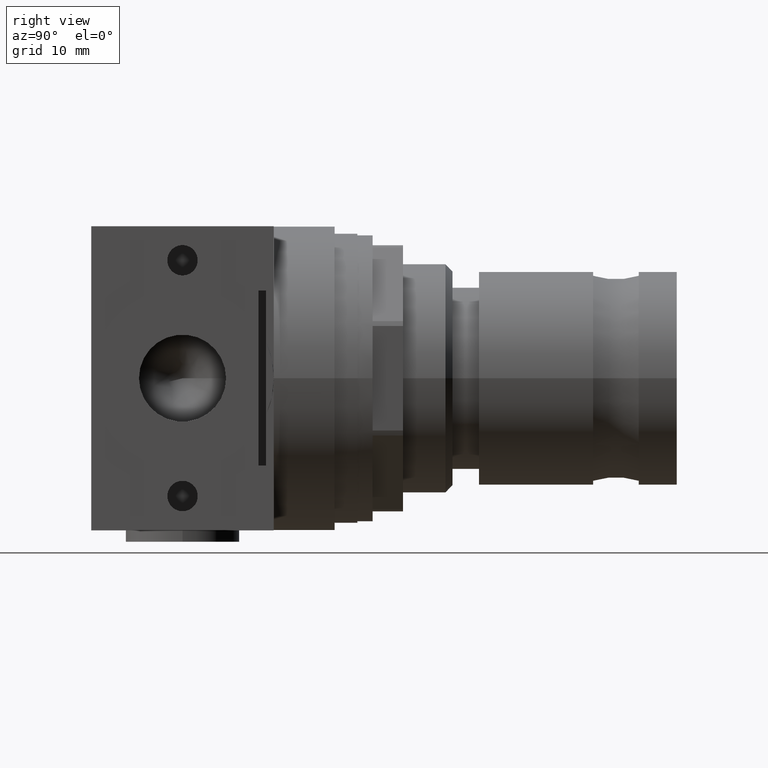
[diagram: clean part render]
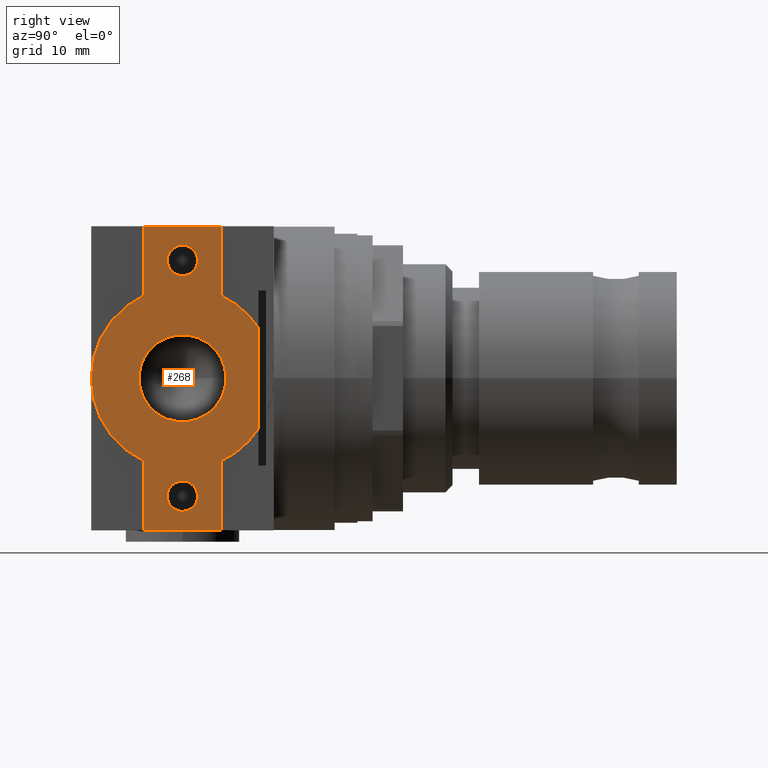
[diagram: same view with one face highlighted and labeled with its STEP entity id]
A machine part, right view. The second image highlights one B-rep face of the part: STEP entity #268.
In plain terms, the highlighted planar face has unit normal (1, 0, 0).
Its self-contained STEP definition (entity closure, byte-faithful):
#268 = ADVANCED_FACE( '', ( #603, #604, #605, #606 ), #607, .T. );
#603 = FACE_BOUND( '', #1048, .T. );
#604 = FACE_OUTER_BOUND( '', #1049, .T. );
#605 = FACE_BOUND( '', #1050, .T. );
#606 = FACE_BOUND( '', #1051, .T. );
#607 = PLANE( '', #1052 );
#1048 = EDGE_LOOP( '', ( #1611 ) );
#1049 = EDGE_LOOP( '', ( #1612, #1613, #1614, #1615, #1616, #1617, #1618, #1619, #1620, #1621 ) );
#1050 = EDGE_LOOP( '', ( #1622 ) );
#1051 = EDGE_LOOP( '', ( #1623 ) );
#1052 = AXIS2_PLACEMENT_3D( '', #1624, #1625, #1626 );
#1611 = ORIENTED_EDGE( '', *, *, #2553, .F. );
#1612 = ORIENTED_EDGE( '', *, *, #2554, .F. );
#1613 = ORIENTED_EDGE( '', *, *, #2555, .T. );
#1614 = ORIENTED_EDGE( '', *, *, #2456, .T. );
#1615 = ORIENTED_EDGE( '', *, *, #2556, .T. );
#1616 = ORIENTED_EDGE( '', *, *, #2557, .T. );
#1617 = ORIENTED_EDGE( '', *, *, #2558, .T. );
#1618 = ORIENTED_EDGE( '', *, *, #2514, .T. );
#1619 = ORIENTED_EDGE( '', *, *, #2559, .T. );
#1620 = ORIENTED_EDGE( '', *, *, #2560, .T. );
#1621 = ORIENTED_EDGE( '', *, *, #2561, .T. );
#1622 = ORIENTED_EDGE( '', *, *, #2562, .F. );
#1623 = ORIENTED_EDGE( '', *, *, #2563, .F. );
#1624 = CARTESIAN_POINT( '', ( 20.0000000000000, 8.67361737988404E-015, 1.73472347597681E-015 ) );
#1625 = DIRECTION( '', ( 1.00000000000000, 0.000000000000000, 0.000000000000000 ) );
#1626 = DIRECTION( '', ( 0.000000000000000, 0.000000000000000, -1.00000000000000 ) );
#2456 = EDGE_CURVE( '', #2876, #2874, #2877, .T. );
#2514 = EDGE_CURVE( '', #2972, #2970, #2973, .T. );
#2553 = EDGE_CURVE( '', #3042, #3042, #3043, .T. );
#2554 = EDGE_CURVE( '', #3044, #3045, #3046, .T. );
#2555 = EDGE_CURVE( '', #3044, #2876, #3047, .T. );
#2556 = EDGE_CURVE( '', #2874, #3048, #3049, .T. );
#2557 = EDGE_CURVE( '', #3048, #3050, #3051, .T. );
#2558 = EDGE_CURVE( '', #3050, #2972, #3052, .T. );
#2559 = EDGE_CURVE( '', #2970, #3053, #3054, .T. );
#2560 = EDGE_CURVE( '', #3053, #3055, #3056, .T. );
#2561 = EDGE_CURVE( '', #3055, #3045, #3057, .T. );
#2562 = EDGE_CURVE( '', #3058, #3058, #3059, .T. );
#2563 = EDGE_CURVE( '', #3060, #3060, #3061, .T. );
#2874 = VERTEX_POINT( '', #3460 );
#2876 = VERTEX_POINT( '', #3463 );
#2877 = LINE( '', #3464, #3465 );
#2970 = VERTEX_POINT( '', #3585 );
#2972 = VERTEX_POINT( '', #3588 );
#2973 = LINE( '', #3589, #3590 );
#3042 = VERTEX_POINT( '', #3677 );
#3043 = CIRCLE( '', #3678, 5.72250000000000 );
#3044 = VERTEX_POINT( '', #3679 );
#3045 = VERTEX_POINT( '', #3680 );
#3046 = LINE( '', #3681, #3682 );
#3047 = CIRCLE( '', #3683, 12.0000000000000 );
#3048 = VERTEX_POINT( '', #3684 );
#3049 = LINE( '', #3685, #3686 );
#3050 = VERTEX_POINT( '', #3687 );
#3051 = LINE( '', #3688, #3689 );
#3052 = CIRCLE( '', #3690, 12.0000000000000 );
#3053 = VERTEX_POINT( '', #3691 );
#3054 = LINE( '', #3692, #3693 );
#3055 = VERTEX_POINT( '', #3694 );
#3056 = LINE( '', #3695, #3696 );
#3057 = CIRCLE( '', #3697, 12.0000000000000 );
#3058 = VERTEX_POINT( '', #3698 );
#3059 = CIRCLE( '', #3699, 2.00000000000000 );
#3060 = VERTEX_POINT( '', #3700 );
#3061 = CIRCLE( '', #3701, 2.00000000000000 );
#3460 = CARTESIAN_POINT( '', ( 20.0000000000000, 5.10000000000000, 20.0000000000000 ) );
#3463 = CARTESIAN_POINT( '', ( 20.0000000000000, 5.10000000000000, 10.8623201941390 ) );
#3464 = CARTESIAN_POINT( '', ( 20.0000000000000, 5.10000000000000, 10.8623201941390 ) );
#3465 = VECTOR( '', #4191, 1000.00000000000 );
#3585 = CARTESIAN_POINT( '', ( 20.0000000000000, -5.10000000000000, -20.0000000000000 ) );
#3588 = CARTESIAN_POINT( '', ( 20.0000000000000, -5.10000000000000, -10.8623201941390 ) );
#3589 = CARTESIAN_POINT( '', ( 20.0000000000000, -5.10000000000000, -10.8623201941390 ) );
#3590 = VECTOR( '', #4259, 1000.00000000000 );
#3677 = CARTESIAN_POINT( '', ( 20.0000000000000, 5.72250000000000, 0.000000000000000 ) );
#3678 = AXIS2_PLACEMENT_3D( '', #4326, #4327, #4328 );
#3679 = CARTESIAN_POINT( '', ( 20.0000000000000, 10.0000000000000, 6.63324958071079 ) );
#3680 = CARTESIAN_POINT( '', ( 20.0000000000000, 10.0000000000000, -6.63324958071079 ) );
#3681 = CARTESIAN_POINT( '', ( 20.0000000000000, 10.0000000000000, 1.73472347597681E-015 ) );
#3682 = VECTOR( '', #4329, 1000.00000000000 );
#3683 = AXIS2_PLACEMENT_3D( '', #4330, #4331, #4332 );
#3684 = CARTESIAN_POINT( '', ( 20.0000000000000, -5.10000000000000, 20.0000000000000 ) );
#3685 = CARTESIAN_POINT( '', ( 20.0000000000000, 5.10000000000000, 20.0000000000000 ) );
#3686 = VECTOR( '', #4333, 1000.00000000000 );
#3687 = CARTESIAN_POINT( '', ( 20.0000000000000, -5.10000000000000, 10.8623201941390 ) );
#3688 = CARTESIAN_POINT( '', ( 20.0000000000000, -5.10000000000000, 20.0000000000000 ) );
#3689 = VECTOR( '', #4334, 1000.00000000000 );
#3690 = AXIS2_PLACEMENT_3D( '', #4335, #4336, #4337 );
#3691 = CARTESIAN_POINT( '', ( 20.0000000000000, 5.10000000000000, -20.0000000000000 ) );
#3692 = CARTESIAN_POINT( '', ( 20.0000000000000, -5.10000000000000, -20.0000000000000 ) );
#3693 = VECTOR( '', #4338, 1000.00000000000 );
#3694 = CARTESIAN_POINT( '', ( 20.0000000000000, 5.10000000000000, -10.8623201941390 ) );
#3695 = CARTESIAN_POINT( '', ( 20.0000000000000, 5.10000000000000, -20.0000000000000 ) );
#3696 = VECTOR( '', #4339, 1000.00000000000 );
#3697 = AXIS2_PLACEMENT_3D( '', #4340, #4341, #4342 );
#3698 = CARTESIAN_POINT( '', ( 20.0000000000000, 0.000000000000000, -17.5000000000000 ) );
#3699 = AXIS2_PLACEMENT_3D( '', #4343, #4344, #4345 );
#3700 = CARTESIAN_POINT( '', ( 20.0000000000000, 0.000000000000000, 13.5000000000000 ) );
#3701 = AXIS2_PLACEMENT_3D( '', #4346, #4347, #4348 );
#4191 = DIRECTION( '', ( 0.000000000000000, 0.000000000000000, 1.00000000000000 ) );
#4259 = DIRECTION( '', ( 0.000000000000000, 0.000000000000000, -1.00000000000000 ) );
#4326 = CARTESIAN_POINT( '', ( 20.0000000000000, 6.39302180868487E-034, 0.000000000000000 ) );
#4327 = DIRECTION( '', ( 1.00000000000000, -1.05696399205655E-017, -0.000000000000000 ) );
#4328 = DIRECTION( '', ( 1.05696399205655E-017, 1.00000000000000, 0.000000000000000 ) );
#4329 = DIRECTION( '', ( 0.000000000000000, 0.000000000000000, -1.00000000000000 ) );
#4330 = CARTESIAN_POINT( '', ( 20.0000000000000, -8.67361737988404E-015, -1.73472347597681E-015 ) );
#4331 = DIRECTION( '', ( 1.00000000000000, 0.000000000000000, 0.000000000000000 ) );
#4332 = DIRECTION( '', ( 0.000000000000000, 0.000000000000000, -1.00000000000000 ) );
#4333 = DIRECTION( '', ( 0.000000000000000, -1.00000000000000, 0.000000000000000 ) );
#4334 = DIRECTION( '', ( 0.000000000000000, 0.000000000000000, -1.00000000000000 ) );
#4335 = CARTESIAN_POINT( '', ( 20.0000000000000, 8.67361737988404E-015, 1.73472347597681E-015 ) );
#4336 = DIRECTION( '', ( 1.00000000000000, 0.000000000000000, 0.000000000000000 ) );
#4337 = DIRECTION( '', ( 0.000000000000000, 0.000000000000000, -1.00000000000000 ) );
#4338 = DIRECTION( '', ( 0.000000000000000, 1.00000000000000, 0.000000000000000 ) );
#4339 = DIRECTION( '', ( 0.000000000000000, 0.000000000000000, 1.00000000000000 ) );
#4340 = CARTESIAN_POINT( '', ( 20.0000000000000, -8.67361737988404E-015, -1.73472347597681E-015 ) );
#4341 = DIRECTION( '', ( 1.00000000000000, 0.000000000000000, 0.000000000000000 ) );
#4342 = DIRECTION( '', ( 0.000000000000000, 0.000000000000000, -1.00000000000000 ) );
#4343 = CARTESIAN_POINT( '', ( 20.0000000000000, 0.000000000000000, -15.5000000000000 ) );
#4344 = DIRECTION( '', ( 1.00000000000000, 0.000000000000000, 0.000000000000000 ) );
#4345 = DIRECTION( '', ( 0.000000000000000, 0.000000000000000, -1.00000000000000 ) );
#4346 = CARTESIAN_POINT( '', ( 20.0000000000000, 0.000000000000000, 15.5000000000000 ) );
#4347 = DIRECTION( '', ( 1.00000000000000, 0.000000000000000, 0.000000000000000 ) );
#4348 = DIRECTION( '', ( 0.000000000000000, 0.000000000000000, -1.00000000000000 ) );